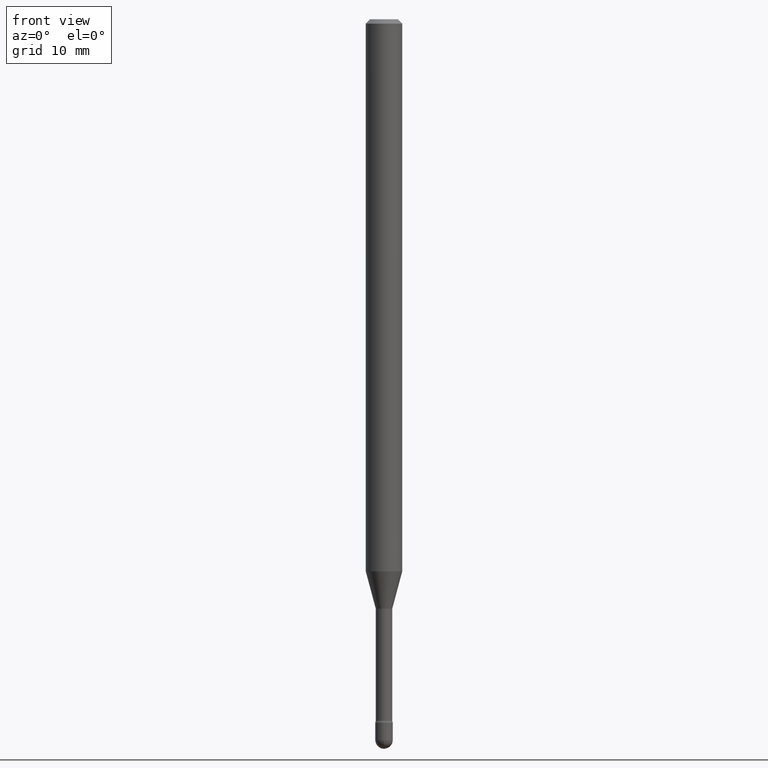
[diagram: clean part render]
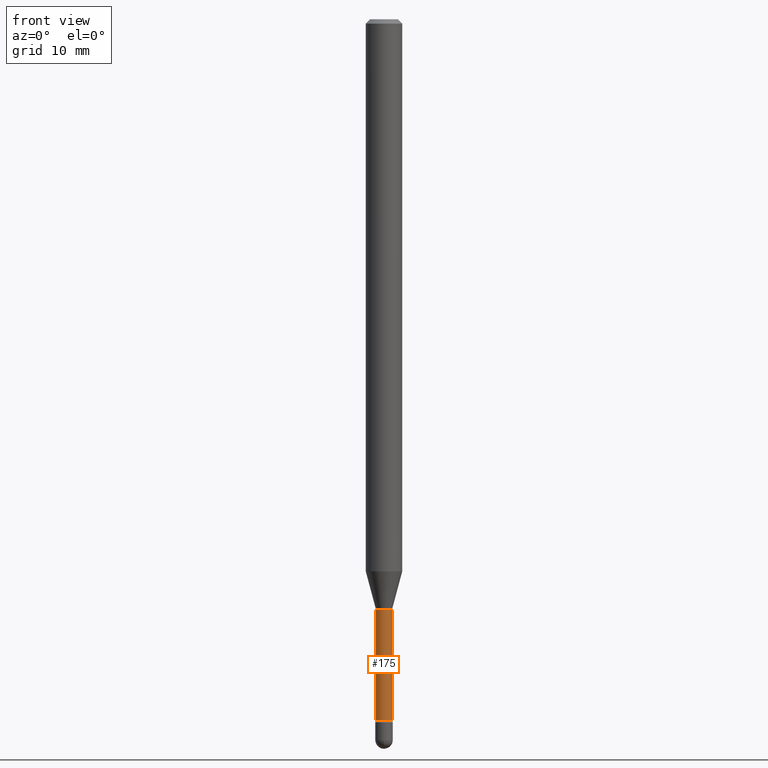
[diagram: same view with one face highlighted and labeled with its STEP entity id]
A machine part, front view. The second image highlights one B-rep face of the part: STEP entity #175.
In plain terms, the highlighted cylindrical surface (edge-blend (fillet) strip) has radius 0.7163 mm, axis along (-0, 0, 1).
Its self-contained STEP definition (entity closure, byte-faithful):
#29 = ORIENTED_EDGE ( 'NONE', *, *, #332, .T. ) ;
#35 = CARTESIAN_POINT ( 'NONE',  ( 0.02819999999999999590, -1.969195475107510260E-16, 4.780733988912474930E-16 ) ) ;
#55 = VERTEX_POINT ( 'NONE', #104 ) ;
#57 = ORIENTED_EDGE ( 'NONE', *, *, #287, .F. ) ;
#91 = DIRECTION ( 'NONE',  ( 1.000000000000000000, -6.982962677686278543E-15, 0.000000000000000000 ) ) ;
#97 = VERTEX_POINT ( 'NONE', #520 ) ;
#103 = LINE ( 'NONE', #447, #472 ) ;
#104 = CARTESIAN_POINT ( 'NONE',  ( 0.02819999999999999590, -8.586514147837976028E-15, -2.402875394747777893 ) ) ;
#106 = DIRECTION ( 'NONE',  ( 1.000000000000000000, -6.982962677686266711E-15, 4.947382444955205209E-29 ) ) ;
#109 = AXIS2_PLACEMENT_3D ( 'NONE', #325, #448, #106 ) ;
#122 = CIRCLE ( 'NONE', #348, 0.02819999999999999590 ) ;
#139 = EDGE_LOOP ( 'NONE', ( #538, #152, #29, #57 ) ) ;
#152 = ORIENTED_EDGE ( 'NONE', *, *, #541, .T. ) ;
#153 = CARTESIAN_POINT ( 'NONE',  ( 0.02819999999999999243, -7.256606785551984890E-15, -2.021974787463811207 ) ) ;
#161 = CARTESIAN_POINT ( 'NONE',  ( 4.944676269635571097E-29, -7.059687238041231398E-15, -2.021974787463811207 ) ) ;
#165 = DIRECTION ( 'NONE',  ( -2.445468806185136877E-29, 3.491481338843145188E-15, 1.000000000000000000 ) ) ;
#171 = DIRECTION ( 'NONE',  ( -2.445468806185136597E-29, 3.491481338843145583E-15, 1.000000000000000000 ) ) ;
#175 = ADVANCED_FACE ( 'NONE', ( #498 ), #400, .T. ) ;
#195 = VERTEX_POINT ( 'NONE', #443 ) ;
#202 = CIRCLE ( 'NONE', #362, 0.02819999999999999243 ) ;
#242 = LINE ( 'NONE', #35, #515 ) ;
#287 = EDGE_CURVE ( 'NONE', #195, #455, #202, .T. ) ;
#325 = CARTESIAN_POINT ( 'NONE',  ( -1.169113584055446105E-44, 1.669184350826100908E-30, 4.780733988912460139E-16 ) ) ;
#332 = EDGE_CURVE ( 'NONE', #55, #455, #242, .T. ) ;
#338 = DIRECTION ( 'NONE',  ( 1.000000000000000000, -6.982962677686279332E-15, 0.000000000000000000 ) ) ;
#348 = AXIS2_PLACEMENT_3D ( 'NONE', #474, #395, #91 ) ;
#362 = AXIS2_PLACEMENT_3D ( 'NONE', #161, #171, #338 ) ;
#371 = EDGE_CURVE ( 'NONE', #97, #195, #103, .T. ) ;
#395 = DIRECTION ( 'NONE',  ( -2.445468806185136597E-29, 3.491481338843145583E-15, 1.000000000000000000 ) ) ;
#400 = CYLINDRICAL_SURFACE ( 'NONE', #109, 0.02819999999999999590 ) ;
#413 = DIRECTION ( 'NONE',  ( -2.445468806185136877E-29, 3.491481338843145188E-15, 1.000000000000000000 ) ) ;
#443 = CARTESIAN_POINT ( 'NONE',  ( -0.02819999999999999243, -7.524267867699879484E-15, -2.021974787463811207 ) ) ;
#447 = CARTESIAN_POINT ( 'NONE',  ( -0.02819999999999999590, 2.003730514843498996E-16, 4.780733988912446334E-16 ) ) ;
#448 = DIRECTION ( 'NONE',  ( -2.445468806185136597E-29, 3.491481338843145583E-15, 1.000000000000000000 ) ) ;
#455 = VERTEX_POINT ( 'NONE', #153 ) ;
#472 = VECTOR ( 'NONE', #165, 39.37007874015748143 ) ;
#474 = CARTESIAN_POINT ( 'NONE',  ( 5.876156823005487003E-29, -8.389594600327222537E-15, -2.402875394747777893 ) ) ;
#498 = FACE_OUTER_BOUND ( 'NONE', #139, .T. ) ;
#515 = VECTOR ( 'NONE', #413, 39.37007874015748143 ) ;
#520 = CARTESIAN_POINT ( 'NONE',  ( -0.02819999999999999590, -8.195264377363413638E-15, -2.402875394747777893 ) ) ;
#538 = ORIENTED_EDGE ( 'NONE', *, *, #371, .F. ) ;
#541 = EDGE_CURVE ( 'NONE', #97, #55, #122, .T. ) ;